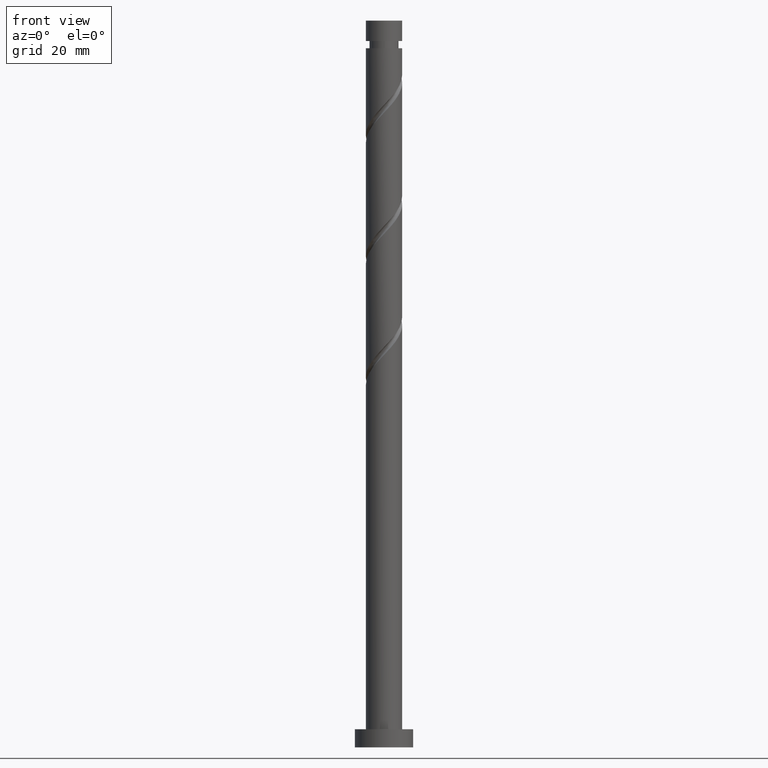
[diagram: clean part render]
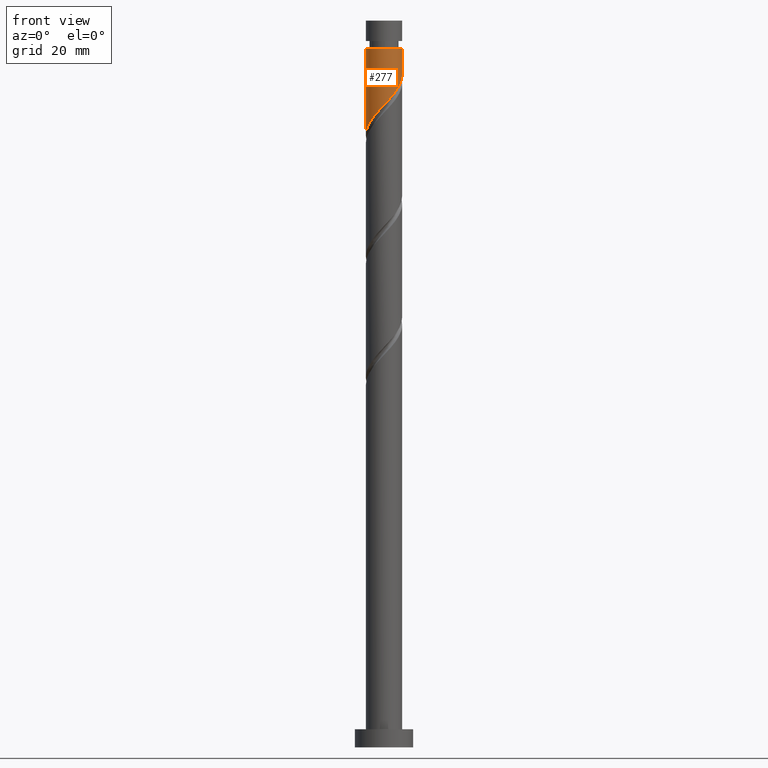
[diagram: same view with one face highlighted and labeled with its STEP entity id]
A machine part, front view. The second image highlights one B-rep face of the part: STEP entity #277.
In plain terms, the highlighted cylindrical surface (edge-blend (fillet) strip) has radius 5 mm, axis along (-0, -0, -1).
Its self-contained STEP definition (entity closure, byte-faithful):
#2 = CARTESIAN_POINT ( 'NONE',  ( 0.9641487162641705355, -4.950123913191582403, 177.8038733902948820 ) ) ;
#3 = AXIS2_PLACEMENT_3D ( 'NONE', #414, #1520, #707 ) ;
#18 = CARTESIAN_POINT ( 'NONE',  ( -4.168385591787598266, -2.761260863840566238, 171.5538733902948820 ) ) ;
#22 =( BOUNDED_CURVE ( )  B_SPLINE_CURVE ( 2, ( #788, #1337, #136, #657, #1224, #648, #923, #1216, #1202, #390, #106, #2, #1466, #1632, #1474, #932, #772, #514, #1494, #802, #18, #1324, #1596, #781, #240, #627, #1605 ),
 .UNSPECIFIED., .F., .T. ) 
 B_SPLINE_CURVE_WITH_KNOTS ( ( 3, 2, 2, 2, 2, 2, 2, 2, 2, 2, 2, 2, 2, 3 ),
 ( 0.3045317669814461836, 0.3125000000000000000, 0.3229166666666666852, 0.3333333333333333148, 0.3437500000000000000, 0.3541666666666666852, 0.3645833333333333148, 0.3750000000000000000, 0.3854166666666666852, 0.3958333333333333148, 0.4062500000000000000, 0.4166666666666666852, 0.4270833333333333148, 0.4295317669814462391 ),
 .UNSPECIFIED. ) 
 CURVE ( )  GEOMETRIC_REPRESENTATION_ITEM ( )  RATIONAL_B_SPLINE_CURVE ( ( 0.9062941362546372837, 0.9031415850403414769, 0.9090909090909168322, 0.9013135103398353110, 0.9090909090909168322, 0.9013135103398353110, 0.9090909090909168322, 0.9013135103398353110, 0.9090909090909168322, 0.9013135103398353110, 0.9090909090909168322, 0.9013135103398353110, 0.9090909090909168322, 0.9013135103398353110, 0.9090909090909168322, 0.9013135103398353110, 0.9090909090909168322, 0.9013135103398353110, 0.9090909090909168322, 0.9013135103398353110, 0.9090909090909168322, 0.9013135103398353110, 0.9090909090909168322, 0.9013135103398353110, 0.9090909090909168322, 0.9072628343904106663, 0.9062941362546372837 ) ) 
 REPRESENTATION_ITEM ( '' )  );
#69 = CARTESIAN_POINT ( 'NONE',  ( -4.999999999999989342, 0.000000000000000000, 192.3872067236282248 ) ) ;
#87 = ORIENTED_EDGE ( 'NONE', *, *, #1680, .T. ) ;
#92 = DIRECTION ( 'NONE',  ( -1.000000000000000000, 0.000000000000000000, 0.000000000000000000 ) ) ;
#106 = CARTESIAN_POINT ( 'NONE',  ( 1.588315603019292199, -4.741018197097059961, 178.4983178347393107 ) ) ;
#136 = CARTESIAN_POINT ( 'NONE',  ( 4.899999999999997691, -0.9949874371066225187, 184.0538733902949105 ) ) ;
#153 = CARTESIAN_POINT ( 'NONE',  ( 5.000000000000000888, 6.123233995736767268E-16, 200.0000000000000000 ) ) ;
#209 = EDGE_CURVE ( 'NONE', #223, #1446, #22, .T. ) ;
#223 = VERTEX_POINT ( 'NONE', #1330 ) ;
#240 = CARTESIAN_POINT ( 'NONE',  ( -4.990558247177374618, -0.3071292586678949221, 168.7760956125171106 ) ) ;
#243 = VECTOR ( 'NONE', #1259, 1000.000000000000000 ) ;
#277 = ADVANCED_FACE ( 'NONE', ( #1334 ), #1073, .T. ) ;
#390 = CARTESIAN_POINT ( 'NONE',  ( 2.212482489774412642, -4.531912481002542847, 179.1927622791837962 ) ) ;
#414 = CARTESIAN_POINT ( 'NONE',  ( 0.000000000000000000, 0.000000000000000000, 192.3872067236282248 ) ) ;
#489 = ORIENTED_EDGE ( 'NONE', *, *, #209, .F. ) ;
#514 = CARTESIAN_POINT ( 'NONE',  ( -2.818510091388754635, -4.182022282074157715, 173.6372067236281680 ) ) ;
#524 = LINE ( 'NONE', #153, #618 ) ;
#527 = ORIENTED_EDGE ( 'NONE', *, *, #1050, .F. ) ;
#556 = VERTEX_POINT ( 'NONE', #69 ) ;
#618 = VECTOR ( 'NONE', #1201, 1000.000000000000000 ) ;
#627 = CARTESIAN_POINT ( 'NONE',  ( -5.000000000000000000, -0.1537097582883670266, 168.6139370668664128 ) ) ;
#648 = CARTESIAN_POINT ( 'NONE',  ( 4.182022282074155939, -2.818510091388756411, 181.9705400569615961 ) ) ;
#657 = CARTESIAN_POINT ( 'NONE',  ( 4.769007418836829437, -1.640084675284865456, 183.3594289458504818 ) ) ;
#679 = VERTEX_POINT ( 'NONE', #895 ) ;
#707 = DIRECTION ( 'NONE',  ( -1.000000000000000000, 0.000000000000000000, 0.000000000000000000 ) ) ;
#772 = CARTESIAN_POINT ( 'NONE',  ( -2.229297383336807936, -4.475514850455493132, 174.3316511680727103 ) ) ;
#781 = CARTESIAN_POINT ( 'NONE',  ( -4.950123913191582403, -0.9641487162641720898, 169.4705400569615961 ) ) ;
#788 = CARTESIAN_POINT ( 'NONE',  ( 4.999999999999999112, 1.091626264384274966E-15, 185.1174400455049351 ) ) ;
#802 = CARTESIAN_POINT ( 'NONE',  ( -3.804858702572659457, -3.310039237906719389, 172.2483178347393391 ) ) ;
#809 = ORIENTED_EDGE ( 'NONE', *, *, #1151, .T. ) ;
#895 = CARTESIAN_POINT ( 'NONE',  ( 4.999999999999989342, 6.123233995736759380E-16, 192.3872067236282248 ) ) ;
#923 = CARTESIAN_POINT ( 'NONE',  ( 3.746030759990437442, -3.311684396980707490, 181.2760956125170821 ) ) ;
#932 = CARTESIAN_POINT ( 'NONE',  ( -1.640084675284863236, -4.769007418836832102, 175.0260956125171106 ) ) ;
#1050 = EDGE_CURVE ( 'NONE', #679, #223, #524, .T. ) ;
#1073 = CYLINDRICAL_SURFACE ( 'NONE', #1736, 5.000000000000000888 ) ;
#1122 = CIRCLE ( 'NONE', #3, 4.999999999999989342 ) ;
#1135 = LINE ( 'NONE', #1521, #243 ) ;
#1151 = EDGE_CURVE ( 'NONE', #556, #1446, #1135, .T. ) ;
#1201 = DIRECTION ( 'NONE',  ( -0.000000000000000000, -0.000000000000000000, -1.000000000000000000 ) ) ;
#1202 = CARTESIAN_POINT ( 'NONE',  ( 2.761260863840564461, -4.168385591787600042, 179.8872067236281396 ) ) ;
#1216 = CARTESIAN_POINT ( 'NONE',  ( 3.310039237906718057, -3.804858702572659457, 180.5816511680726819 ) ) ;
#1224 = CARTESIAN_POINT ( 'NONE',  ( 4.475514850455492244, -2.229297383336811045, 182.6649845014059679 ) ) ;
#1259 = DIRECTION ( 'NONE',  ( -0.000000000000000000, -0.000000000000000000, -1.000000000000000000 ) ) ;
#1324 = CARTESIAN_POINT ( 'NONE',  ( -4.531912481002542847, -2.212482489774412642, 170.8594289458504250 ) ) ;
#1330 = CARTESIAN_POINT ( 'NONE',  ( 5.000000000000000000, 1.091626264384274966E-15, 185.1174400455049351 ) ) ;
#1332 = EDGE_LOOP ( 'NONE', ( #527, #87, #809, #489 ) ) ;
#1334 = FACE_OUTER_BOUND ( 'NONE', #1332, .T. ) ;
#1337 = CARTESIAN_POINT ( 'NONE',  ( 5.000000000000000888, -0.5025189076296036061, 184.5840136763156920 ) ) ;
#1446 = VERTEX_POINT ( 'NONE', #1628 ) ;
#1466 = CARTESIAN_POINT ( 'NONE',  ( 0.3071292586678936454, -4.990558247177374618, 177.1094289458503965 ) ) ;
#1474 = CARTESIAN_POINT ( 'NONE',  ( -0.9949874371066222967, -4.899999999999997691, 175.7205400569615392 ) ) ;
#1492 = CARTESIAN_POINT ( 'NONE',  ( 0.000000000000000000, 0.000000000000000000, 200.0000000000000000 ) ) ;
#1494 = CARTESIAN_POINT ( 'NONE',  ( -3.311684396980707046, -3.746030759990437442, 172.9427622791837678 ) ) ;
#1520 = DIRECTION ( 'NONE',  ( -0.000000000000000000, -0.000000000000000000, -1.000000000000000000 ) ) ;
#1521 = CARTESIAN_POINT ( 'NONE',  ( -5.000000000000000888, 0.000000000000000000, 200.0000000000000000 ) ) ;
#1596 = CARTESIAN_POINT ( 'NONE',  ( -4.741018197097059961, -1.588315603019292865, 170.1649845014059679 ) ) ;
#1605 = CARTESIAN_POINT ( 'NONE',  ( -5.000000000000000888, -2.332790373204751885E-15, 168.4507733788382495 ) ) ;
#1619 = DIRECTION ( 'NONE',  ( -0.000000000000000000, -0.000000000000000000, -1.000000000000000000 ) ) ;
#1628 = CARTESIAN_POINT ( 'NONE',  ( -5.000000000000000888, -2.332790373204751885E-15, 168.4507733788382779 ) ) ;
#1632 = CARTESIAN_POINT ( 'NONE',  ( -0.3498901989283836333, -5.030992581163167721, 176.4149845014060247 ) ) ;
#1680 = EDGE_CURVE ( 'NONE', #679, #556, #1122, .T. ) ;
#1736 = AXIS2_PLACEMENT_3D ( 'NONE', #1492, #1619, #92 ) ;